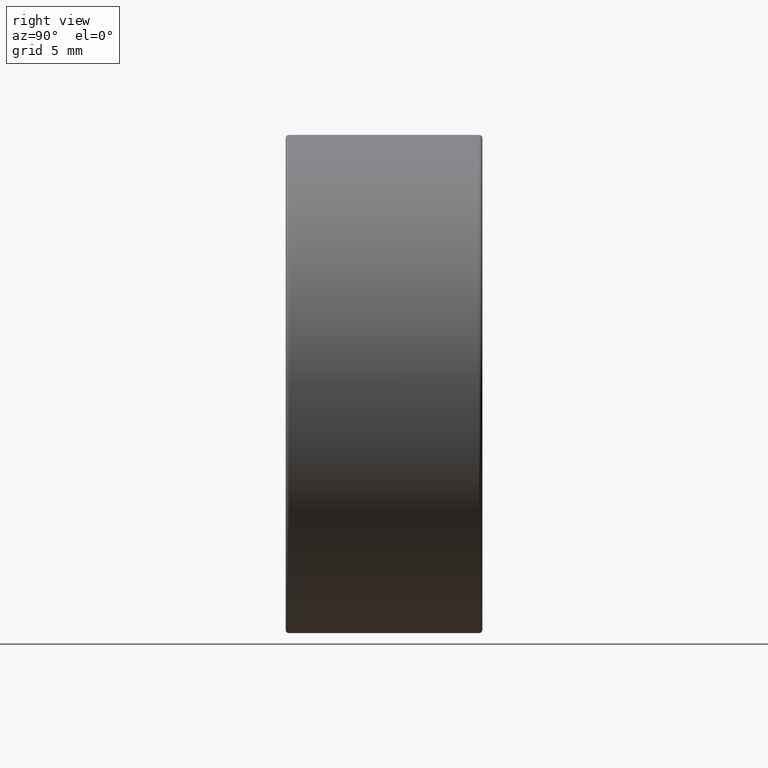
[diagram: clean part render]
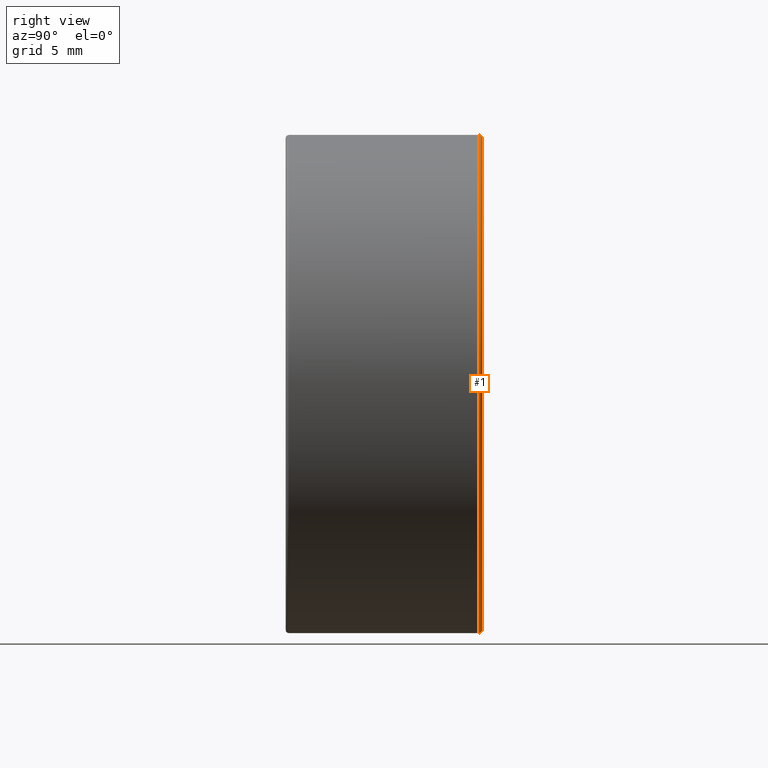
[diagram: same view with one face highlighted and labeled with its STEP entity id]
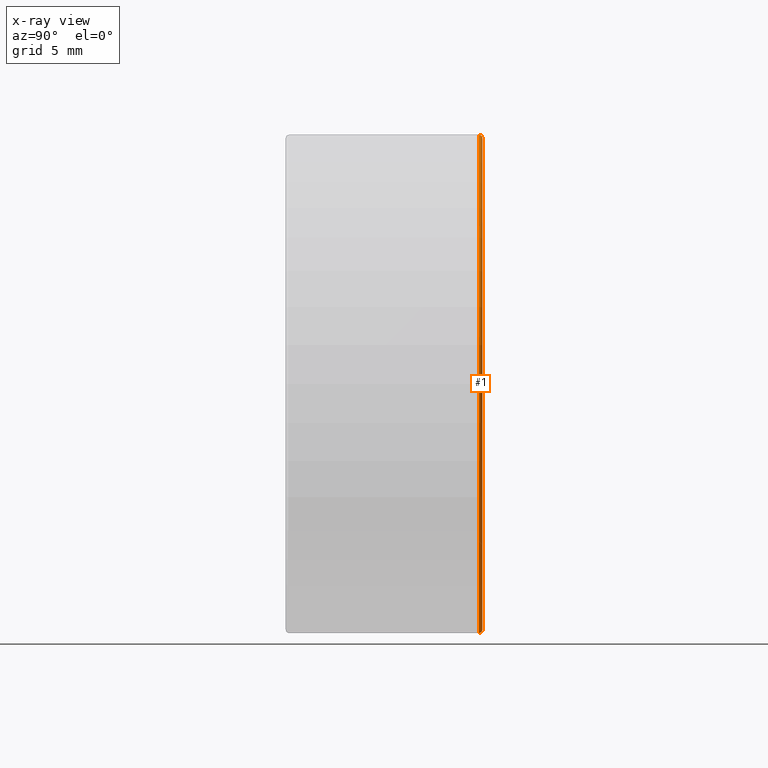
[diagram: x-ray of the same camera — body ghosted, the highlighted face saturated]
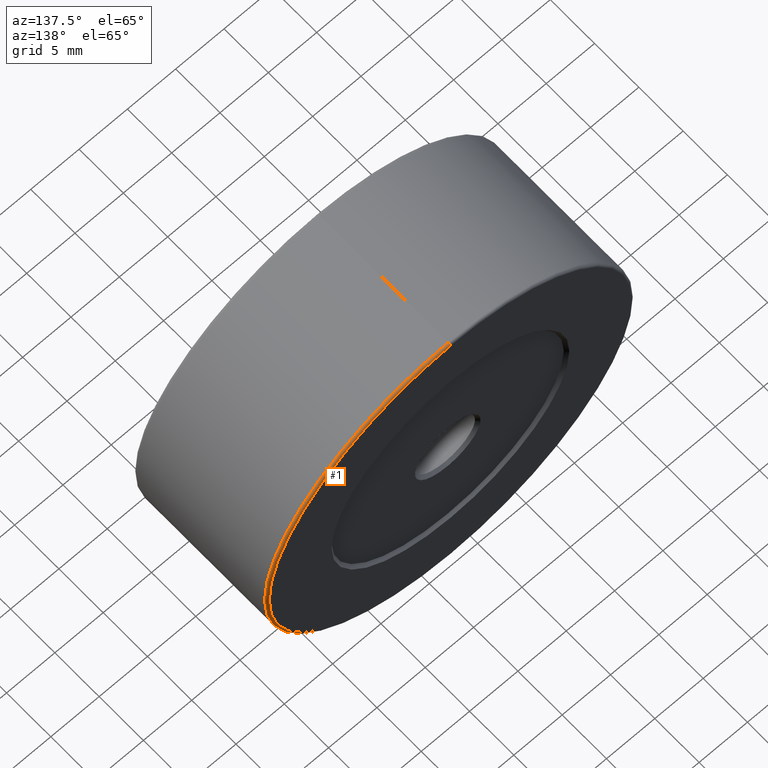
[diagram: same view with one face highlighted and labeled with its STEP entity id]
A machine part, right view. The second image highlights one B-rep face of the part: STEP entity #1.
The next image is the same camera in x-ray: the body ghosted, the highlighted face saturated — about 0% of this face is hidden behind the body in this view.
A second angle (auxiliary view) of the same face is appended — the face is thin or edge-on in the first view.
In plain terms, the highlighted toroidal blend (fillet) surface has major radius 18.75 mm and minor (blend) radius 0.25 mm.
Its self-contained STEP definition (entity closure, byte-faithful):
#1 = ADVANCED_FACE ( 'NONE', ( #130 ), #344, .T. ) ;
#20 = CARTESIAN_POINT ( 'NONE',  ( -7.546808913101045846, 4.356404872697271280, 19.25000000000000000 ) ) ;
#41 = DIRECTION ( 'NONE',  ( 0.000000000000000000, 0.000000000000000000, 1.000000000000000000 ) ) ;
#77 = EDGE_CURVE ( 'NONE', #345, #351, #394, .T. ) ;
#86 = CARTESIAN_POINT ( 'NONE',  ( -7.546808913101045846, 4.606404872697272168, 19.25000000000000000 ) ) ;
#110 = VERTEX_POINT ( 'NONE', #578 ) ;
#119 = CIRCLE ( 'NONE', #242, 0.2500000000000002220 ) ;
#124 = CARTESIAN_POINT ( 'NONE',  ( -7.546808913101048510, 4.356404872697271280, 38.00000000000000000 ) ) ;
#127 = DIRECTION ( 'NONE',  ( -0.000000000000000000, -1.000000000000000000, -0.000000000000000000 ) ) ;
#130 = FACE_OUTER_BOUND ( 'NONE', #308, .T. ) ;
#150 = EDGE_CURVE ( 'NONE', #110, #351, #119, .T. ) ;
#160 = DIRECTION ( 'NONE',  ( 0.000000000000000000, 0.000000000000000000, -1.000000000000000000 ) ) ;
#214 = AXIS2_PLACEMENT_3D ( 'NONE', #287, #337, #523 ) ;
#230 = DIRECTION ( 'NONE',  ( 0.000000000000000000, 0.000000000000000000, 1.000000000000000000 ) ) ;
#231 = DIRECTION ( 'NONE',  ( 0.000000000000000000, 1.000000000000000000, 0.000000000000000000 ) ) ;
#234 = ORIENTED_EDGE ( 'NONE', *, *, #471, .F. ) ;
#242 = AXIS2_PLACEMENT_3D ( 'NONE', #20, #385, #160 ) ;
#262 = EDGE_CURVE ( 'NONE', #110, #438, #536, .T. ) ;
#263 = CIRCLE ( 'NONE', #457, 0.2500000000000002220 ) ;
#287 = CARTESIAN_POINT ( 'NONE',  ( -7.546808913101048510, 4.606404872697272168, 38.00000000000000000 ) ) ;
#308 = EDGE_LOOP ( 'NONE', ( #386, #399, #336, #234 ) ) ;
#329 = DIRECTION ( 'NONE',  ( -1.000000000000000000, 0.000000000000000000, 0.000000000000000000 ) ) ;
#336 = ORIENTED_EDGE ( 'NONE', *, *, #77, .F. ) ;
#337 = DIRECTION ( 'NONE',  ( 0.000000000000000000, 1.000000000000000000, 0.000000000000000000 ) ) ;
#344 = TOROIDAL_SURFACE ( 'NONE', #528, 18.75000000000000000, 0.2500000000000000000 ) ;
#345 = VERTEX_POINT ( 'NONE', #591 ) ;
#351 = VERTEX_POINT ( 'NONE', #86 ) ;
#385 = DIRECTION ( 'NONE',  ( 1.000000000000000000, -0.000000000000000000, 1.224646799147353207E-16 ) ) ;
#386 = ORIENTED_EDGE ( 'NONE', *, *, #262, .F. ) ;
#394 = CIRCLE ( 'NONE', #214, 18.74999999999999645 ) ;
#399 = ORIENTED_EDGE ( 'NONE', *, *, #150, .T. ) ;
#438 = VERTEX_POINT ( 'NONE', #604 ) ;
#457 = AXIS2_PLACEMENT_3D ( 'NONE', #613, #329, #230 ) ;
#471 = EDGE_CURVE ( 'NONE', #438, #345, #263, .T. ) ;
#496 = DIRECTION ( 'NONE',  ( 0.000000000000000000, 0.000000000000000000, 1.000000000000000000 ) ) ;
#501 = CARTESIAN_POINT ( 'NONE',  ( -7.546808913101048510, 4.356404872697271280, 38.00000000000000000 ) ) ;
#523 = DIRECTION ( 'NONE',  ( 0.000000000000000000, 0.000000000000000000, 1.000000000000000000 ) ) ;
#525 = AXIS2_PLACEMENT_3D ( 'NONE', #124, #127, #41 ) ;
#528 = AXIS2_PLACEMENT_3D ( 'NONE', #501, #231, #496 ) ;
#536 = CIRCLE ( 'NONE', #525, 18.99999999999999645 ) ;
#578 = CARTESIAN_POINT ( 'NONE',  ( -7.546808913101044958, 4.356404872697271280, 19.00000000000000000 ) ) ;
#591 = CARTESIAN_POINT ( 'NONE',  ( -7.546808913101048510, 4.606404872697272168, 56.74999999999999289 ) ) ;
#604 = CARTESIAN_POINT ( 'NONE',  ( -7.546808913101048510, 4.356404872697271280, 56.99999999999999289 ) ) ;
#613 = CARTESIAN_POINT ( 'NONE',  ( -7.546808913101048510, 4.356404872697271280, 56.74999999999999289 ) ) ;